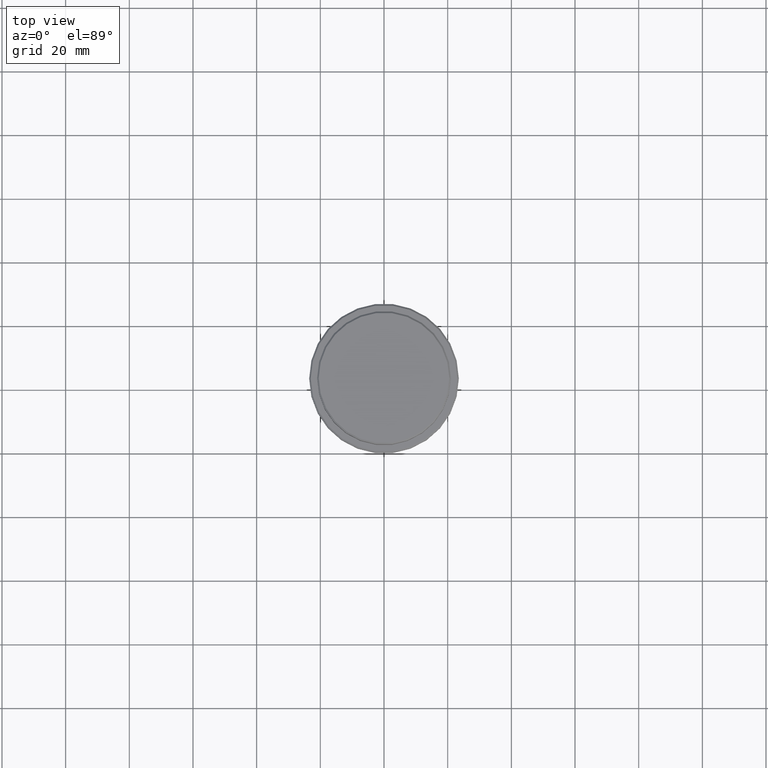
[diagram: clean part render]
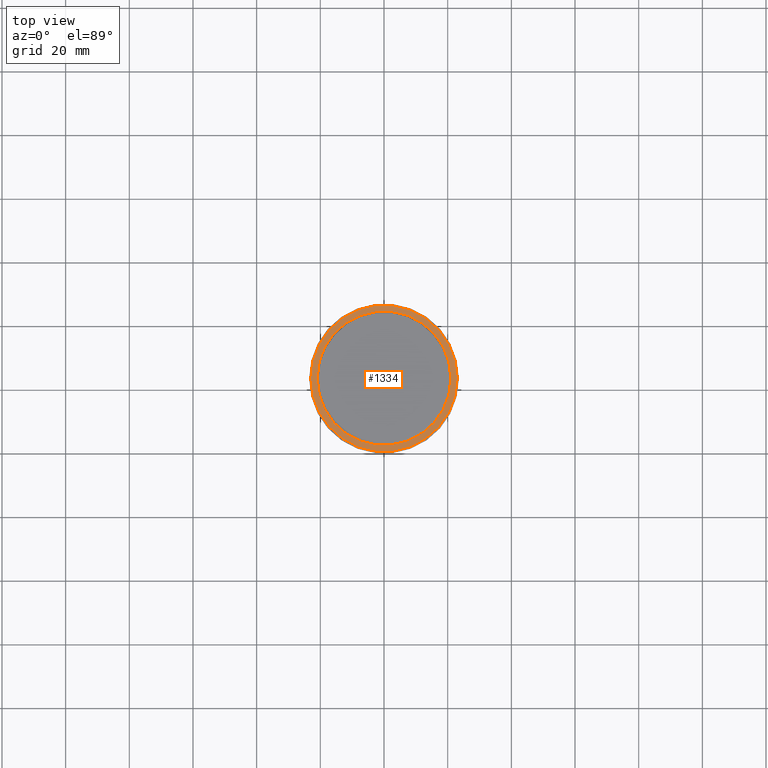
[diagram: same view with one face highlighted and labeled with its STEP entity id]
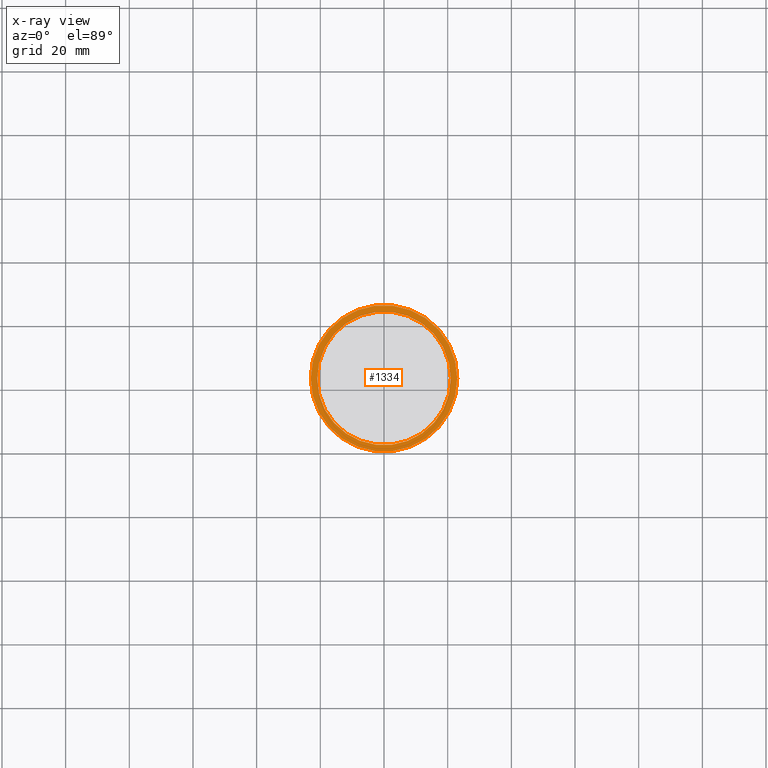
[diagram: x-ray of the same camera — body ghosted, the highlighted face saturated]
A machine part, top view. The second image highlights one B-rep face of the part: STEP entity #1334.
The next image is the same camera in x-ray: the body ghosted, the highlighted face saturated — about 0% of this face is hidden behind the body in this view.
In plain terms, the highlighted planar face has unit normal (0, -0, 1).
Its self-contained STEP definition (entity closure, byte-faithful):
#48 = DIRECTION ( 'NONE',  ( 0.000000000000000000, 0.000000000000000000, -1.000000000000000000 ) ) ;
#65 = CARTESIAN_POINT ( 'NONE',  ( 0.000000000000000000, 0.000000000000000000, -9.000000000000001776 ) ) ;
#105 = DIRECTION ( 'NONE',  ( 1.000000000000000000, 0.000000000000000000, 0.000000000000000000 ) ) ;
#106 = EDGE_CURVE ( 'NONE', #1121, #187, #542, .T. ) ;
#187 = VERTEX_POINT ( 'NONE', #297 ) ;
#247 = CIRCLE ( 'NONE', #1216, 23.00000000000002487 ) ;
#262 = EDGE_LOOP ( 'NONE', ( #752, #531 ) ) ;
#267 = FACE_BOUND ( 'NONE', #793, .T. ) ;
#284 = DIRECTION ( 'NONE',  ( 1.000000000000000000, 0.000000000000000000, 0.000000000000000000 ) ) ;
#297 = CARTESIAN_POINT ( 'NONE',  ( -20.99999999999999289, 2.571758278209440872E-15, -9.000000000000001776 ) ) ;
#310 = EDGE_CURVE ( 'NONE', #187, #1121, #1125, .T. ) ;
#314 = AXIS2_PLACEMENT_3D ( 'NONE', #65, #393, #284 ) ;
#393 = DIRECTION ( 'NONE',  ( -0.000000000000000000, -0.000000000000000000, 1.000000000000000000 ) ) ;
#397 = FACE_OUTER_BOUND ( 'NONE', #262, .T. ) ;
#427 = DIRECTION ( 'NONE',  ( -0.000000000000000000, -0.000000000000000000, 1.000000000000000000 ) ) ;
#488 = DIRECTION ( 'NONE',  ( 1.000000000000000000, 0.000000000000000000, 0.000000000000000000 ) ) ;
#515 = ORIENTED_EDGE ( 'NONE', *, *, #310, .T. ) ;
#531 = ORIENTED_EDGE ( 'NONE', *, *, #1143, .T. ) ;
#542 = CIRCLE ( 'NONE', #761, 20.99999999999999289 ) ;
#636 = AXIS2_PLACEMENT_3D ( 'NONE', #1321, #1020, #105 ) ;
#717 = PLANE ( 'NONE',  #1017 ) ;
#724 = DIRECTION ( 'NONE',  ( 1.000000000000000000, 0.000000000000000000, 0.000000000000000000 ) ) ;
#733 = CARTESIAN_POINT ( 'NONE',  ( -23.00000000000002487, 0.000000000000000000, -9.000000000000001776 ) ) ;
#752 = ORIENTED_EDGE ( 'NONE', *, *, #1387, .T. ) ;
#761 = AXIS2_PLACEMENT_3D ( 'NONE', #1046, #48, #488 ) ;
#793 = EDGE_LOOP ( 'NONE', ( #1313, #515 ) ) ;
#812 = CARTESIAN_POINT ( 'NONE',  ( 23.00000000000002487, 2.847303808017597717E-15, -9.000000000000001776 ) ) ;
#834 = CARTESIAN_POINT ( 'NONE',  ( 0.000000000000000000, 20.49999999999999645, -9.000000000000001776 ) ) ;
#972 = CARTESIAN_POINT ( 'NONE',  ( 0.000000000000000000, 0.000000000000000000, -9.000000000000001776 ) ) ;
#976 = VERTEX_POINT ( 'NONE', #812 ) ;
#1017 = AXIS2_PLACEMENT_3D ( 'NONE', #834, #1267, #724 ) ;
#1020 = DIRECTION ( 'NONE',  ( 0.000000000000000000, 0.000000000000000000, -1.000000000000000000 ) ) ;
#1046 = CARTESIAN_POINT ( 'NONE',  ( 0.000000000000000000, 0.000000000000000000, -9.000000000000001776 ) ) ;
#1060 = DIRECTION ( 'NONE',  ( 1.000000000000000000, 0.000000000000000000, 0.000000000000000000 ) ) ;
#1088 = CIRCLE ( 'NONE', #314, 23.00000000000002487 ) ;
#1121 = VERTEX_POINT ( 'NONE', #1294 ) ;
#1125 = CIRCLE ( 'NONE', #636, 20.99999999999999289 ) ;
#1143 = EDGE_CURVE ( 'NONE', #976, #1397, #247, .T. ) ;
#1216 = AXIS2_PLACEMENT_3D ( 'NONE', #972, #427, #1060 ) ;
#1267 = DIRECTION ( 'NONE',  ( 0.000000000000000000, -0.000000000000000000, 1.000000000000000000 ) ) ;
#1294 = CARTESIAN_POINT ( 'NONE',  ( 20.99999999999999289, 0.000000000000000000, -9.000000000000001776 ) ) ;
#1313 = ORIENTED_EDGE ( 'NONE', *, *, #106, .T. ) ;
#1321 = CARTESIAN_POINT ( 'NONE',  ( 0.000000000000000000, 0.000000000000000000, -9.000000000000001776 ) ) ;
#1334 = ADVANCED_FACE ( 'NONE', ( #397, #267 ), #717, .T. ) ;
#1387 = EDGE_CURVE ( 'NONE', #1397, #976, #1088, .T. ) ;
#1397 = VERTEX_POINT ( 'NONE', #733 ) ;